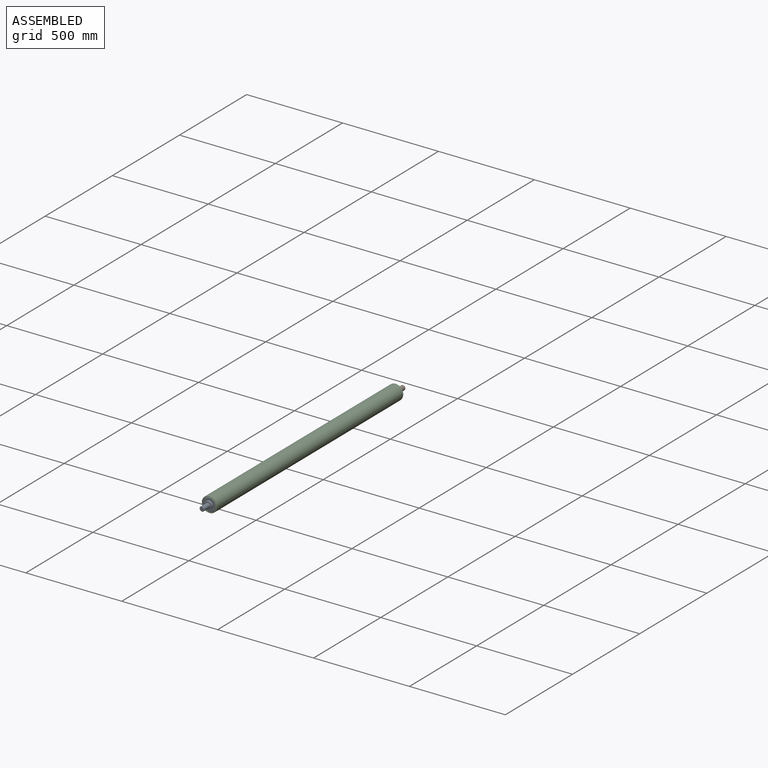
[diagram: assembled view]
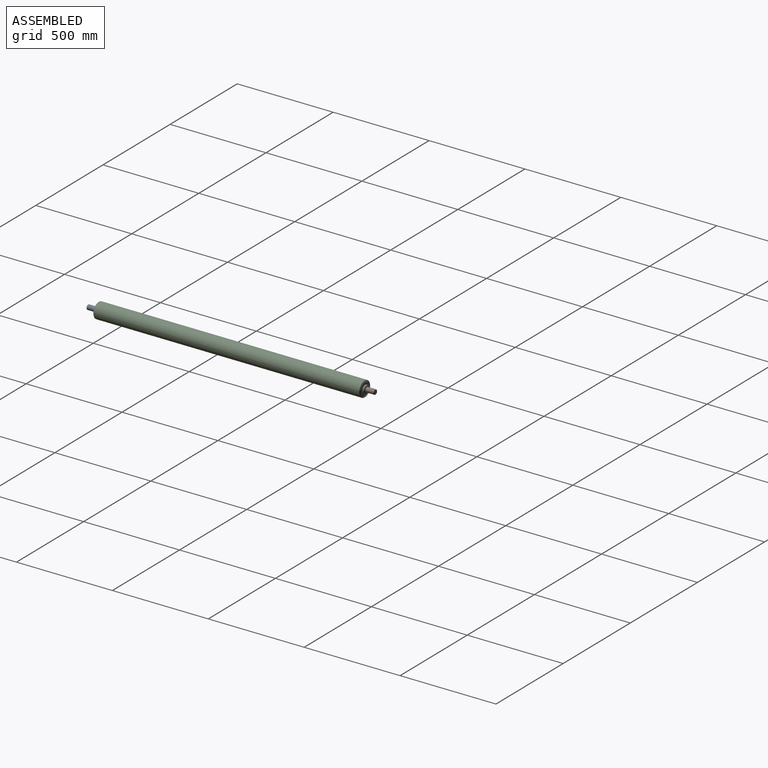
[diagram: assembled view, second angle]
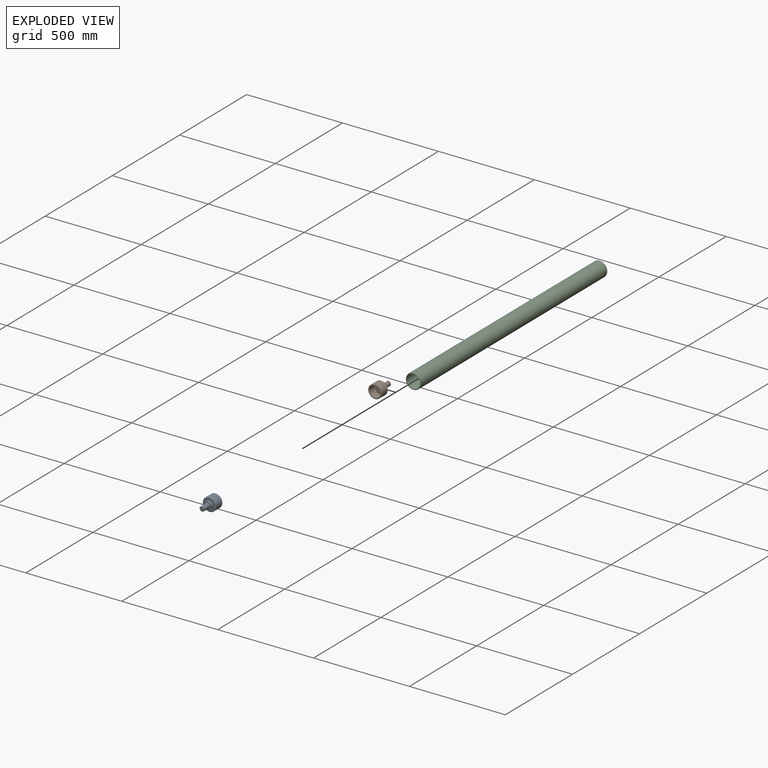
[diagram: exploded view]
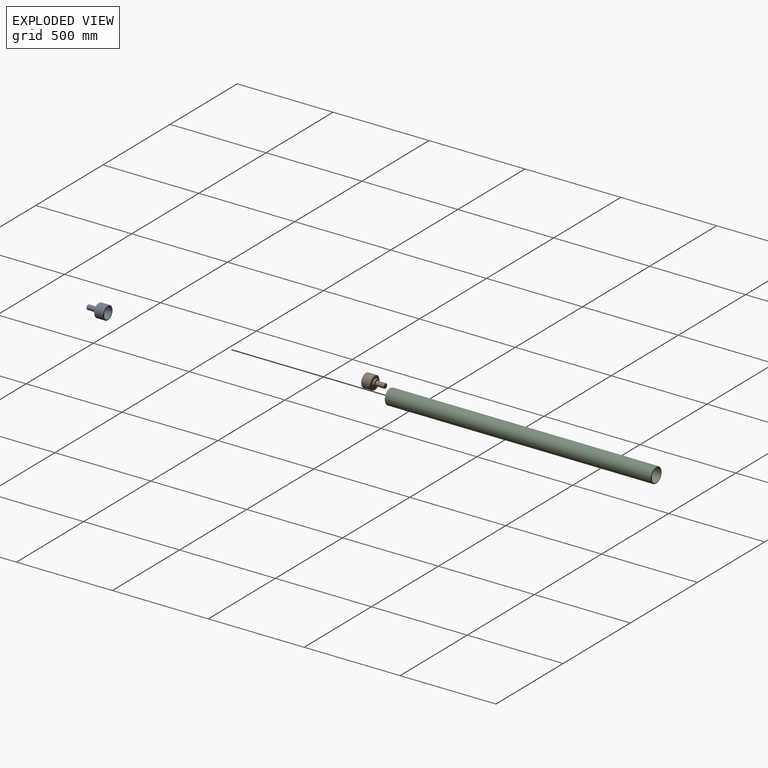
[diagram: exploded view, second angle]
ASSEMBLY  parts=3 mates=3
PART A: 13 faces, bbox 70x105x70 mm
  f0: cylinder r=35mm len=70mm, axis (0,1,0), area 9896mm2, adj f5,f6
  f1: plane 64x64mm, normal (0,-1,0), area 1960.4mm2, adj f5,f7
  f2: plane 66x66mm, normal (0,1,0), area 779.1mm2, adj f3,f6
  f3: cylinder r=29mm len=58mm, axis (0,1,0), area 7652.9mm2, adj f2,f4
  f4: plane 58x58mm, normal (0,1,0), area 2642.1mm2, adj f3
  f5: cone r=32mm half-angle=45deg, axis (0,1,0), area 893mm2, adj f0,f1
  f6: cone r=35mm half-angle=45deg, axis (0,-1,0), area 604.2mm2, adj f0,f2
  f7: cylinder r=20mm len=40mm, axis (0,1,0), area 1005.3mm2, adj f1,f12
  f8: plane 36x36mm, normal (0,-1,0), area 527mm2, adj f11,f12
  f9: plane 21x21mm, normal (0,-1,0), area 346.4mm2, adj f10
  f10: cone r=10.5mm half-angle=45deg, axis (0,1,0), area 204.4mm2, adj f9,f11
  f11: cylinder r=12.5mm len=43mm, axis (0,1,0), area 3377.2mm2, adj f8,f10
  f12: cone r=18mm half-angle=45deg, axis (0,1,0), area 337.7mm2, adj f7,f8
PART B: same geometry as A
PART C: 6 faces, bbox 80x1390x80 mm
  f0: cylinder r=35mm len=1390mm, axis (0,1,0), area 305677mm2, adj f2,f3
  f1: cylinder r=40mm len=1386mm, axis (0,1,0), area 348339.8mm2, adj f4,f5
  f2: plane 76x76mm, normal (0,-1,0), area 688mm2, adj f0,f4
  f3: plane 76x76mm, normal (0,1,0), area 688mm2, adj f0,f5
  f4: cone r=38mm half-angle=45deg, axis (0,1,0), area 693.1mm2, adj f1,f2
  f5: cone r=40mm half-angle=45deg, axis (0,-1,0), area 693.1mm2, adj f1,f3
PLACE A t=(-676.75,-546.56,-163.26)mm
PLACE B rot(axis=(0,0,1),180deg) t=(-676.75,743.44,-163.26)mm
PLACE C t=(-676.75,793.44,-163.26)mm
MATE parallel A.f0 <-> C.f1  axis (0,-1,0) through (-676.75,-596.56,-163.26)mm
MATE cylindrical C.f1 <-> A.f0  axis (0,-1,0) through (-676.75,-596.56,-163.26)mm
MATE slider A.f0 <-> C.f1  axis (0,-1,0) through (-676.75,-596.56,-163.26)mm
